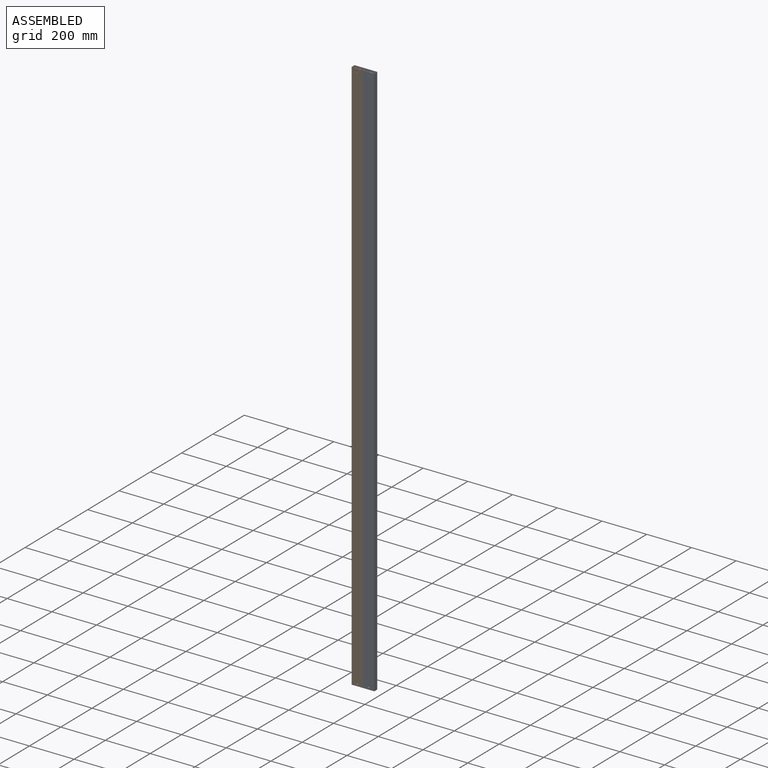
[diagram: assembled view]
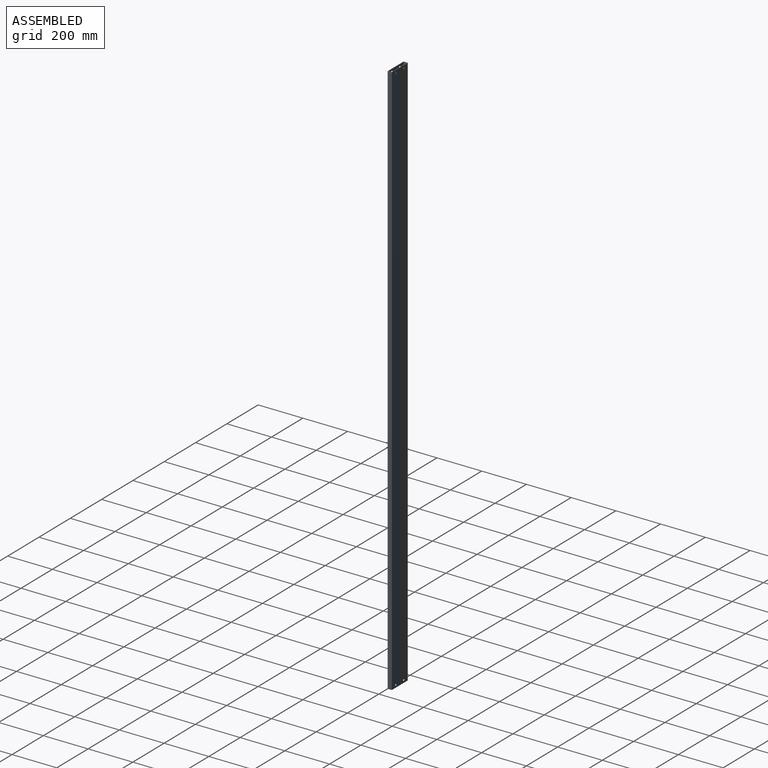
[diagram: assembled view, second angle]
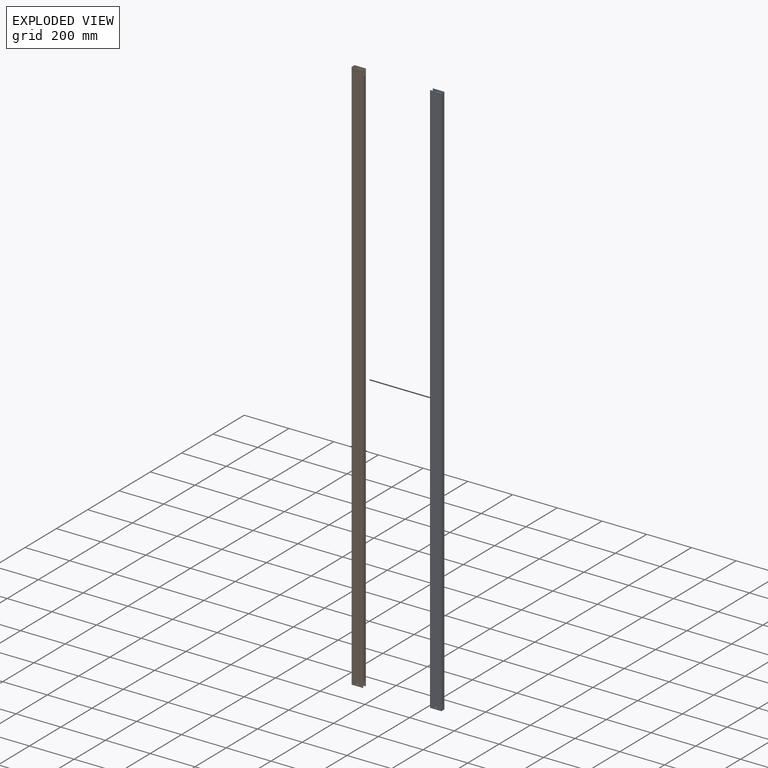
[diagram: exploded view]
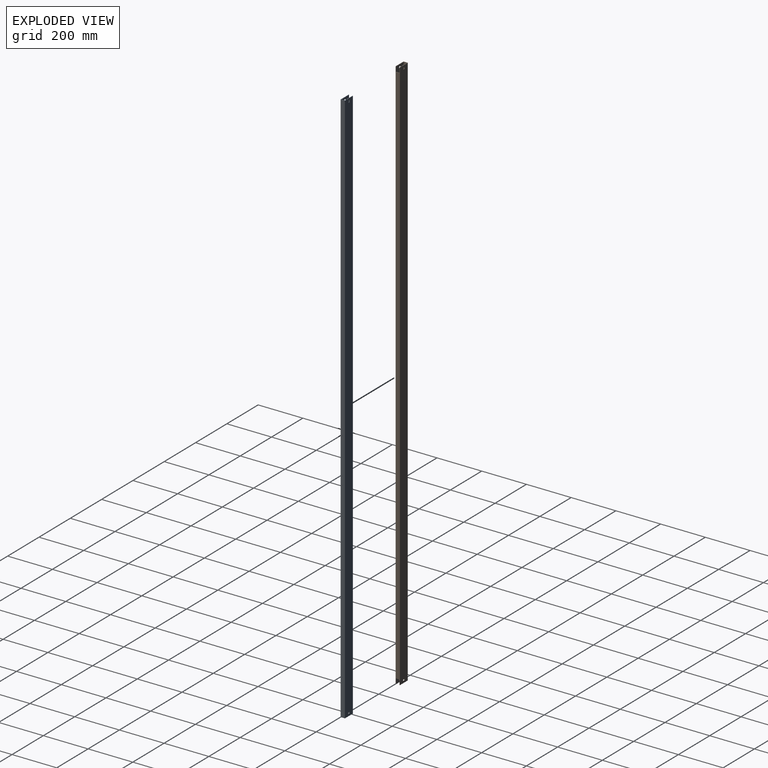
[diagram: exploded view, second angle]
ASSEMBLY  parts=2 mates=2
PART A: 16 faces, bbox 50.8x19.1x2497.1 mm
  f0: plane 2451.42x15.75mm, normal (1,0,0), area 38604.9mm2, adj f3,f4,f10,f11
  f1: plane 2497.14x19.05mm, normal (-1,0,0), area 46850.5mm2, adj f2,f3,f4,f5,f6,f9,f10,f11
  f2: plane 50.8x19.05mm, normal (0,0,1), area 193.7mm2, adj f1,f3,f4,f5,f6,f7,f8
  f3: plane 2497.14x49.15mm, normal (0,1,0), area 118542mm2, adj f0,f1,f2,f8,f9,f10,f11,f14
  f4: plane 2497.14x49.15mm, normal (0,-1,0), area 118542mm2, adj f0,f1,f2,f8,f9,f10,f11,f12
  f5: plane 2497.14x50.8mm, normal (0,1,0), area 126712.1mm2, adj f1,f2,f7,f9,f12,f13
  f6: plane 2497.14x50.8mm, normal (0,-1,0), area 126712.1mm2, adj f1,f2,f7,f9,f14,f15
  f7: plane 2497.14x19.05mm, normal (1,0,0), area 47570.5mm2, adj f2,f5,f6,f9
  f8: plane 2497.14x15.75mm, normal (-1,0,0), area 39324.9mm2, adj f2,f3,f4,f9
  f9: plane 50.8x19.05mm, normal (0,0,-1), area 193.7mm2, adj f1,f3,f4,f5,f6,f7,f8
  f10: plane 15.75x1.65mm, normal (0,0,-1), area 26mm2, adj f0,f1,f3,f4
  f11: plane 15.75x1.65mm, normal (0,0,1), area 26mm2, adj f0,f1,f3,f4
  f12: cylinder r=4.76mm len=9.53mm, axis (0,-1,0), area 49.4mm2, adj f4,f5
  f13: cylinder r=4.76mm len=9.53mm, axis (0,-1,0), area 49.4mm2, adj f4,f5
  f14: cylinder r=4.76mm len=9.53mm, axis (0,-1,0), area 49.4mm2, adj f3,f6
  f15: cylinder r=4.76mm len=9.53mm, axis (0,-1,0), area 49.4mm2, adj f3,f6
PART B: same geometry as A
PLACE A t=(-868.01,140.96,-4208.59)mm
PLACE B rot(axis=(0,1,0),180deg) t=(-1214.08,140.96,-1508.25)mm
MATE planar A.f1 <-> B.f1  axis (-1,0,0) through (-1041.05,56.03,-2858.42)mm
MATE planar B.f2 <-> A.f9  axis (0,0,-1) through (-1069.74,56.03,-4106.99)mm
